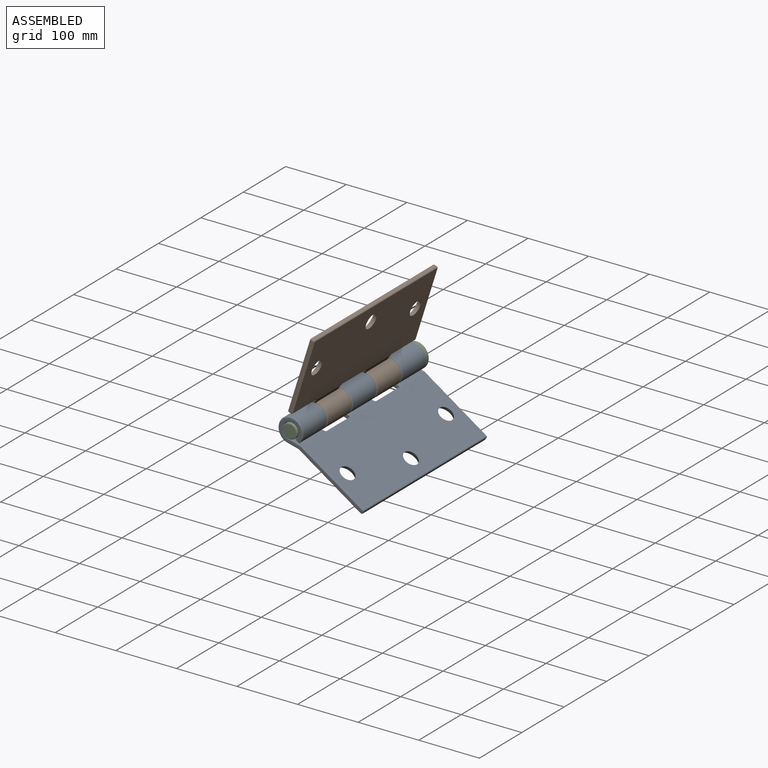
[diagram: assembled view]
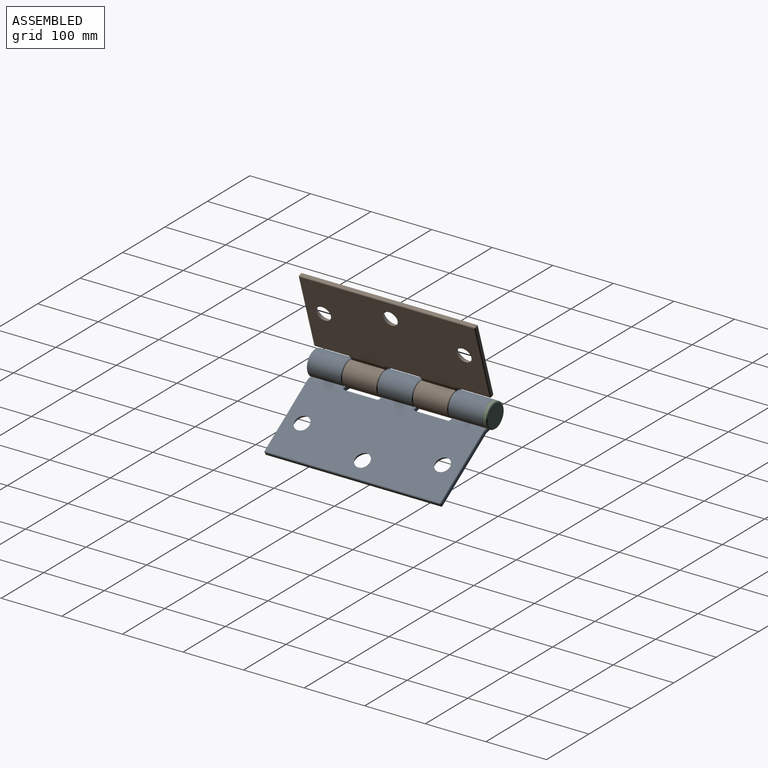
[diagram: assembled view, second angle]
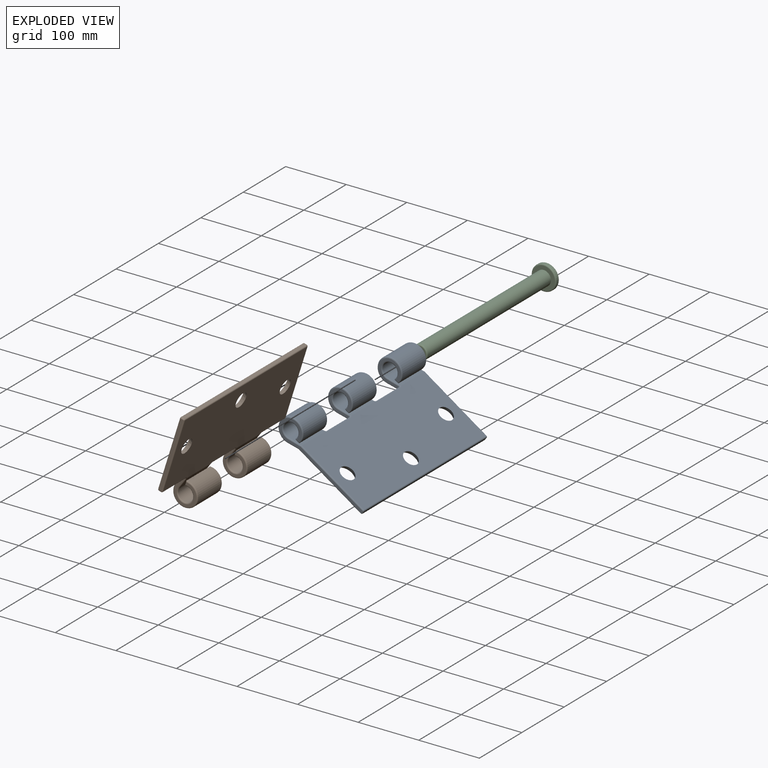
[diagram: exploded view]
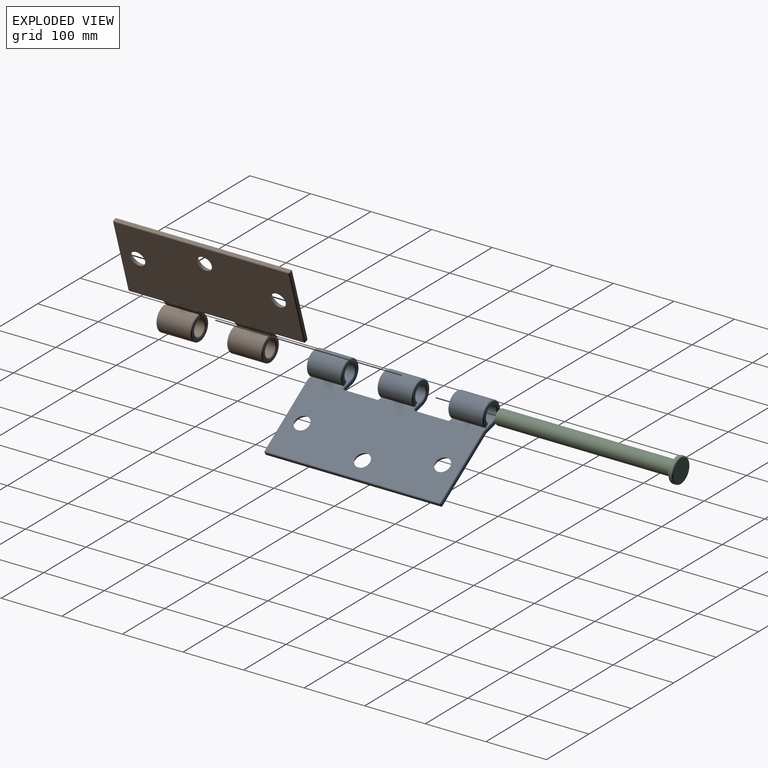
[diagram: exploded view, second angle]
ASSEMBLY  parts=3 mates=2
PART A: 95 faces, bbox 171.7x292x44.4 mm
  f0: cylinder r=12.5mm len=54.4mm, axis (0,1,0), area 3703.3mm2, adj f2,f8,f36,f85
  f1: cylinder r=12.5mm len=54.4mm, axis (0,1,0), area 3703.3mm2, adj f3,f9,f45,f56
  f2: plane 55.3x20.54mm, normal (-0.32,0,0.95), area 1179mm2, adj f0,f12,f33,f34,f35,f80
  f3: plane 56.21x20.54mm, normal (-0.32,0,0.95), area 1179.8mm2, adj f1,f12,f39,f41,f43,f53,f54,f55
  f4: plane 54.63x17.59mm, normal (0.34,0,-0.94), area 1016.4mm2, adj f6,f14,f42,f44,f93
  f5: plane 54.85x17.59mm, normal (0.34,0,-0.94), area 1016.5mm2, adj f7,f14,f51,f52,f62,f64
  f6: cylinder r=20.5mm len=54.4mm, axis (0,1,0), area 5913.6mm2, adj f4,f8,f40,f91
  f7: cylinder r=20.5mm len=54.4mm, axis (0,1,0), area 5913.6mm2, adj f5,f9,f49,f60
  f8: plane 54.4x8.42mm, normal (0,0,-1), area 458.3mm2, adj f0,f6,f38,f88
  f9: plane 54.4x8.42mm, normal (0,0,-1), area 458.3mm2, adj f1,f7,f47,f58
  f10: cylinder r=12.5mm len=54.4mm, axis (0,1,0), area 3703.3mm2, adj f11,f17,f65,f73
  f11: plane 55.3x20.54mm, normal (-0.32,0,0.95), area 1179mm2, adj f10,f12,f59,f61,f63,f74
  f12: plane 288x123mm, normal (0,0,1), area 33829.6mm2, adj f2,f3,f11,f20,f21,f22,f35,f37
  f13: plane 288x4mm, normal (1,0,0), area 1152mm2, adj f82,f83,f89,f90
  f14: plane 288x123.06mm, normal (0,0,-1), area 32774mm2, adj f4,f5,f15,f20,f21,f22,f44,f46
  f15: plane 54.63x17.59mm, normal (0.34,0,-0.94), area 1016.4mm2, adj f14,f16,f71,f72,f79
  f16: cylinder r=20.5mm len=54.4mm, axis (0,1,0), area 5913.6mm2, adj f15,f17,f69,f77
  f17: plane 54.4x8.42mm, normal (0,0,-1), area 458.3mm2, adj f10,f16,f67,f75
  f18: plane 166x37mm, normal (0,-1,0), area 913.5mm2, adj f80,f81,f85,f88,f89,f91,f93,f94
  f19: plane 166x37mm, normal (0,1,0), area 913.5mm2, adj f73,f74,f75,f76,f77,f79,f83,f84
  f20: cone r=12mm half-angle=26.6deg, axis (0,0,-1), area 786.8mm2, adj f12,f14
  f21: cone r=16mm half-angle=26.6deg, axis (0,0,-1), area 786.8mm2, adj f12,f14
  f22: cone r=16mm half-angle=26.6deg, axis (0,0,-1), area 786.8mm2, adj f12,f14
  f23: plane 54.4x4mm, normal (-1,0,0), area 217.6mm2, adj f29,f30,f57,f68
  f24: plane 41x37mm, normal (0,1,0), area 413.9mm2, adj f29,f54,f56,f58,f60,f62
  f25: plane 41x37mm, normal (0,-1,0), area 413.9mm2, adj f30,f63,f65,f67,f69,f71
  f26: plane 54.4x4mm, normal (-1,0,0), area 217.6mm2, adj f31,f32,f37,f48
  f27: plane 41x37mm, normal (0,1,0), area 413.9mm2, adj f31,f34,f36,f38,f40,f42
  f28: plane 41x37mm, normal (0,-1,0), area 413.9mm2, adj f32,f43,f45,f47,f49,f51
  f29: cylinder r=2mm len=4.59mm, axis (0,0,1), area 12.3mm2, adj f23,f24,f53,f55,f64,f66
  f30: cylinder r=2mm len=4.59mm, axis (0,0,-1), area 12.3mm2, adj f23,f25,f59,f61,f70,f72
  f31: cylinder r=2mm len=4.59mm, axis (0,0,1), area 12.3mm2, adj f26,f27,f33,f35,f44,f46
  f32: cylinder r=2mm len=4.59mm, axis (0,0,-1), area 12.3mm2, adj f26,f28,f39,f41,f50,f52
  f33: bspline ~2.75x2.54mm, area 6mm2, adj f2,f31,f34,f35
  f34: cylinder r=2mm len=18.54mm, axis (-0.95,0,-0.32), area 59.3mm2, adj f2,f27,f33,f36
  f35: torus R=4mm, axis (0,0,-1), area 8.7mm2, adj f2,f12,f31,f33,f37
  f36: torus R=14.5mm, axis (0,1,0), area 222mm2, adj f0,f27,f34,f38
  f37: cylinder r=2mm len=54.4mm, axis (0,-1,0), area 170.9mm2, adj f12,f26,f35,f39
  f38: cylinder r=2mm len=8.42mm, axis (1,0,0), area 19.6mm2, adj f8,f27,f36,f40
  f39: torus R=4mm, axis (0,0,-1), area 8.7mm2, adj f3,f12,f32,f37,f41
  f40: torus R=18.5mm, axis (0,1,0), area 326.9mm2, adj f6,f27,f38,f42
  f41: bspline ~3.65x3.11mm, area 6mm2, adj f3,f32,f39,f43
  f42: cylinder r=2mm len=16.94mm, axis (0.94,0,0.34), area 54.3mm2, adj f4,f27,f40,f44
  f43: cylinder r=2mm len=18.54mm, axis (0.95,0,0.32), area 59.3mm2, adj f3,f28,f41,f45
  f44: bspline ~2.47x2.33mm, area 3.5mm2, adj f4,f14,f31,f42,f46
  f45: torus R=14.5mm, axis (0,1,0), area 222mm2, adj f1,f28,f43,f47
  f46: torus R=4mm, axis (0,0,1), area 9.2mm2, adj f14,f31,f44,f48
  f47: cylinder r=2mm len=8.42mm, axis (-1,0,0), area 19.6mm2, adj f9,f28,f45,f49
  f48: cylinder r=2mm len=54.4mm, axis (0,1,0), area 170.9mm2, adj f14,f26,f46,f50
  f49: torus R=18.5mm, axis (0,1,0), area 326.9mm2, adj f7,f28,f47,f51
  f50: torus R=4mm, axis (0,0,1), area 9.2mm2, adj f14,f32,f48,f52
  f51: cylinder r=2mm len=16.94mm, axis (-0.94,0,-0.34), area 54.3mm2, adj f5,f28,f49,f52
  f52: bspline ~2.47x2.33mm, area 3.5mm2, adj f5,f14,f32,f50,f51
  f53: bspline ~2.75x2.54mm, area 6mm2, adj f3,f29,f54,f55
  f54: cylinder r=2mm len=18.54mm, axis (-0.95,0,-0.32), area 59.3mm2, adj f3,f24,f53,f56
  f55: torus R=4mm, axis (0,0,-1), area 8.7mm2, adj f3,f12,f29,f53,f57
  f56: torus R=14.5mm, axis (0,1,0), area 222mm2, adj f1,f24,f54,f58
  f57: cylinder r=2mm len=54.4mm, axis (0,-1,0), area 170.9mm2, adj f12,f23,f55,f59
  f58: cylinder r=2mm len=8.42mm, axis (1,0,0), area 19.6mm2, adj f9,f24,f56,f60
  f59: torus R=4mm, axis (0,0,-1), area 8.7mm2, adj f11,f12,f30,f57,f61
  f60: torus R=18.5mm, axis (0,1,0), area 326.9mm2, adj f7,f24,f58,f62
  f61: bspline ~3.65x3.11mm, area 6mm2, adj f11,f30,f59,f63
  f62: cylinder r=2mm len=16.94mm, axis (0.94,0,0.34), area 54.3mm2, adj f5,f24,f60,f64
  f63: cylinder r=2mm len=18.54mm, axis (0.95,0,0.32), area 59.3mm2, adj f11,f25,f61,f65
  f64: bspline ~2.47x2.33mm, area 3.5mm2, adj f5,f14,f29,f62,f66
  f65: torus R=14.5mm, axis (0,1,0), area 222mm2, adj f10,f25,f63,f67
  f66: torus R=4mm, axis (0,0,1), area 9.2mm2, adj f14,f29,f64,f68
  f67: cylinder r=2mm len=8.42mm, axis (-1,0,0), area 19.6mm2, adj f17,f25,f65,f69
  f68: cylinder r=2mm len=54.4mm, axis (0,1,0), area 170.9mm2, adj f14,f23,f66,f70
  f69: torus R=18.5mm, axis (0,1,0), area 326.9mm2, adj f16,f25,f67,f71
  f70: torus R=4mm, axis (0,0,1), area 9.2mm2, adj f14,f30,f68,f72
  f71: cylinder r=2mm len=16.94mm, axis (-0.94,0,-0.34), area 54.3mm2, adj f15,f25,f69,f72
  f72: bspline ~2.47x2.33mm, area 3.5mm2, adj f14,f15,f30,f70,f71
  f73: torus R=14.5mm, axis (0,-1,0), area 222mm2, adj f10,f19,f74,f75
  f74: cylinder r=2mm len=21.18mm, axis (0.95,0,0.32), area 67.5mm2, adj f11,f19,f73,f76
  f75: cylinder r=2mm len=8.42mm, axis (-1,0,0), area 19.6mm2, adj f17,f19,f73,f77
  f76: cylinder r=2mm len=123mm, axis (1,0,0), area 385.9mm2, adj f12,f19,f74,f78
  f77: torus R=18.5mm, axis (0,-1,0), area 326.9mm2, adj f16,f19,f75,f79
  f78: sphere r=2mm, area 6.3mm2, adj f76,f82,f83
  f79: cylinder r=2mm len=18.59mm, axis (-0.94,0,-0.34), area 59.2mm2, adj f15,f19,f77,f84
  f80: cylinder r=2mm len=21.18mm, axis (-0.95,0,-0.32), area 67.5mm2, adj f2,f18,f81,f85
  f81: cylinder r=2mm len=123mm, axis (-1,0,0), area 385.9mm2, adj f12,f18,f80,f86
  f82: cylinder r=2mm len=288mm, axis (0,1,0), area 904.8mm2, adj f12,f13,f78,f86
  f83: cylinder r=2mm len=4mm, axis (0,0,-1), area 12.6mm2, adj f13,f19,f78,f87
  f84: cylinder r=2mm len=123.35mm, axis (-1,0,0), area 387mm2, adj f14,f19,f79,f87
  f85: torus R=14.5mm, axis (0,-1,0), area 222mm2, adj f0,f18,f80,f88
  f86: sphere r=2mm, area 6.3mm2, adj f81,f82,f89
  f87: sphere r=2mm, area 4mm2, adj f83,f84,f90
  f88: cylinder r=2mm len=8.42mm, axis (1,0,0), area 19.6mm2, adj f8,f18,f85,f91
  f89: cylinder r=2mm len=4mm, axis (0,0,1), area 12.6mm2, adj f13,f18,f86,f92
  f90: cylinder r=2mm len=288mm, axis (0,1,0), area 904.8mm2, adj f13,f14,f87,f92
  f91: torus R=18.5mm, axis (0,-1,0), area 326.9mm2, adj f6,f18,f88,f93
  f92: sphere r=2mm, area 6.3mm2, adj f89,f90,f94
  f93: cylinder r=2mm len=18.59mm, axis (0.94,0,0.34), area 59.2mm2, adj f4,f18,f91,f94
  f94: cylinder r=2mm len=123.35mm, axis (1,0,0), area 387mm2, adj f14,f18,f92,f93
PART B: 89 faces, bbox 171.7x292x44.4 mm
  f0: cylinder r=12.5mm len=54.4mm, axis (0,1,0), area 3703.3mm2, adj f2,f8,f61,f72
  f1: cylinder r=12.5mm len=54.4mm, axis (0,1,0), area 3703.3mm2, adj f3,f9,f29,f81
  f2: plane 56.21x20.54mm, normal (0.32,0,0.95), area 1179.8mm2, adj f0,f12,f50,f55,f58,f69,f70,f71
  f3: plane 56.21x20.54mm, normal (0.32,0,0.95), area 1179.8mm2, adj f1,f12,f30,f32,f34,f75,f77,f79
  f4: plane 54.85x17.59mm, normal (-0.34,0,-0.94), area 1016.5mm2, adj f6,f14,f67,f68,f78,f80
  f5: plane 54.85x17.59mm, normal (-0.34,0,-0.94), area 1016.5mm2, adj f7,f14,f35,f37,f87,f88
  f6: cylinder r=20.5mm len=54.4mm, axis (0,1,0), area 5913.6mm2, adj f4,f8,f65,f76
  f7: cylinder r=20.5mm len=54.4mm, axis (0,1,0), area 5913.6mm2, adj f5,f9,f33,f85
  f8: plane 54.4x8.42mm, normal (0,0,-1), area 458.3mm2, adj f0,f6,f63,f74
  f9: plane 54.4x8.42mm, normal (0,0,-1), area 458.3mm2, adj f1,f7,f31,f83
  f10: plane 121x4mm, normal (0,-1,0), area 484mm2, adj f40,f41,f46,f47
  f11: plane 121x4mm, normal (0,1,0), area 484mm2, adj f52,f53,f59,f60
  f12: plane 288x123mm, normal (0,0,1), area 33720.8mm2, adj f2,f3,f15,f16,f17,f34,f36,f40
  f13: plane 288x4mm, normal (-1,0,0), area 1152mm2, adj f45,f46,f53,f54
  f14: plane 288x123.06mm, normal (0,0,-1), area 32665.2mm2, adj f4,f5,f15,f16,f17,f37,f39,f42
  f15: cone r=12mm half-angle=26.6deg, axis (0,0,-1), area 786.8mm2, adj f12,f14
  f16: cone r=16mm half-angle=26.6deg, axis (0,0,-1), area 786.8mm2, adj f12,f14
  f17: cone r=16mm half-angle=26.6deg, axis (0,0,-1), area 786.8mm2, adj f12,f14
  f18: plane 54.4x4mm, normal (1,0,0), area 217.6mm2, adj f25,f36,f41,f42
  f19: plane 41x37mm, normal (0,-1,0), area 413.9mm2, adj f25,f29,f30,f31,f33,f35
  f20: plane 54.4x4mm, normal (1,0,0), area 217.6mm2, adj f26,f27,f73,f84
  f21: plane 41x37mm, normal (0,-1,0), area 413.9mm2, adj f26,f70,f72,f74,f76,f78
  f22: plane 41x37mm, normal (0,1,0), area 413.9mm2, adj f27,f79,f81,f83,f85,f87
  f23: plane 54.4x4mm, normal (1,0,0), area 217.6mm2, adj f28,f51,f59,f64
  f24: plane 41x37mm, normal (0,1,0), area 413.9mm2, adj f28,f58,f61,f63,f65,f67
  f25: cylinder r=2mm len=4.59mm, axis (0,0,-1), area 12.3mm2, adj f18,f19,f32,f34,f37,f39
  f26: cylinder r=2mm len=4.59mm, axis (0,0,-1), area 12.3mm2, adj f20,f21,f69,f71,f80,f82
  f27: cylinder r=2mm len=4.59mm, axis (0,0,1), area 12.3mm2, adj f20,f22,f75,f77,f86,f88
  f28: cylinder r=2mm len=4.59mm, axis (0,0,1), area 12.3mm2, adj f23,f24,f50,f55,f66,f68
  f29: torus R=14.5mm, axis (0,-1,0), area 222mm2, adj f1,f19,f30,f31
  f30: cylinder r=2mm len=18.54mm, axis (0.95,0,-0.32), area 59.3mm2, adj f3,f19,f29,f32
  f31: cylinder r=2mm len=8.42mm, axis (-1,0,0), area 19.6mm2, adj f9,f19,f29,f33
  f32: bspline ~3.65x3.11mm, area 6mm2, adj f3,f25,f30,f34
  f33: torus R=18.5mm, axis (0,-1,0), area 326.9mm2, adj f7,f19,f31,f35
  f34: torus R=4mm, axis (0,0,-1), area 8.7mm2, adj f3,f12,f25,f32,f36
  f35: cylinder r=2mm len=16.94mm, axis (-0.94,0,0.34), area 54.3mm2, adj f5,f19,f33,f37
  f36: cylinder r=2mm len=54.4mm, axis (0,-1,0), area 170.9mm2, adj f12,f18,f34,f38
  f37: bspline ~2.47x2.33mm, area 3.5mm2, adj f5,f14,f25,f35,f39
  f38: sphere r=2mm, area 6.3mm2, adj f36,f40,f41
  f39: torus R=4mm, axis (0,0,1), area 9.2mm2, adj f14,f25,f37,f42
  f40: cylinder r=2mm len=121mm, axis (1,0,0), area 380.1mm2, adj f10,f12,f38,f43
  f41: cylinder r=2mm len=4mm, axis (0,0,1), area 12.6mm2, adj f10,f18,f38,f44
  f42: cylinder r=2mm len=54.4mm, axis (0,-1,0), area 170.9mm2, adj f14,f18,f39,f44
  f43: sphere r=2mm, area 6.3mm2, adj f40,f45,f46
  f44: sphere r=2mm, area 6.3mm2, adj f41,f42,f47
  f45: cylinder r=2mm len=288mm, axis (0,1,0), area 904.8mm2, adj f12,f13,f43,f48
  f46: cylinder r=2mm len=4mm, axis (0,0,1), area 12.6mm2, adj f10,f13,f43,f49
  f47: cylinder r=2mm len=121mm, axis (-1,0,0), area 380.1mm2, adj f10,f14,f44,f49
  f48: sphere r=2mm, area 6.3mm2, adj f45,f52,f53
  f49: sphere r=2mm, area 6.3mm2, adj f46,f47,f54
  f50: torus R=4mm, axis (0,0,-1), area 8.7mm2, adj f2,f12,f28,f51,f55
  f51: cylinder r=2mm len=54.4mm, axis (0,1,0), area 170.9mm2, adj f12,f23,f50,f56
  f52: cylinder r=2mm len=121mm, axis (-1,0,0), area 380.1mm2, adj f11,f12,f48,f56
  f53: cylinder r=2mm len=4mm, axis (0,0,-1), area 12.6mm2, adj f11,f13,f48,f57
  f54: cylinder r=2mm len=288mm, axis (0,1,0), area 904.8mm2, adj f13,f14,f49,f57
  f55: bspline ~3.65x3.11mm, area 6mm2, adj f2,f28,f50,f58
  f56: sphere r=2mm, area 6.3mm2, adj f51,f52,f59
  f57: sphere r=2mm, area 6.3mm2, adj f53,f54,f60
  f58: cylinder r=2mm len=18.54mm, axis (-0.95,0,0.32), area 59.3mm2, adj f2,f24,f55,f61
  f59: cylinder r=2mm len=4mm, axis (0,0,-1), area 12.6mm2, adj f11,f23,f56,f62
  f60: cylinder r=2mm len=121mm, axis (1,0,0), area 380.1mm2, adj f11,f14,f57,f62
  f61: torus R=14.5mm, axis (0,-1,0), area 222mm2, adj f0,f24,f58,f63
  f62: sphere r=2mm, area 4mm2, adj f59,f60,f64
  f63: cylinder r=2mm len=8.42mm, axis (1,0,0), area 19.6mm2, adj f8,f24,f61,f65
  f64: cylinder r=2mm len=54.4mm, axis (0,-1,0), area 170.9mm2, adj f14,f23,f62,f66
  f65: torus R=18.5mm, axis (0,-1,0), area 326.9mm2, adj f6,f24,f63,f67
  f66: torus R=4mm, axis (0,0,1), area 9.2mm2, adj f14,f28,f64,f68
  f67: cylinder r=2mm len=16.94mm, axis (0.94,0,-0.34), area 54.3mm2, adj f4,f24,f65,f68
  f68: bspline ~2.47x2.33mm, area 3.5mm2, adj f4,f14,f28,f66,f67
  f69: bspline ~3.65x3.11mm, area 6mm2, adj f2,f26,f70,f71
  f70: cylinder r=2mm len=18.54mm, axis (0.95,0,-0.32), area 59.3mm2, adj f2,f21,f69,f72
  f71: torus R=4mm, axis (0,0,-1), area 8.7mm2, adj f2,f12,f26,f69,f73
  f72: torus R=14.5mm, axis (0,-1,0), area 222mm2, adj f0,f21,f70,f74
  f73: cylinder r=2mm len=54.4mm, axis (0,1,0), area 170.9mm2, adj f12,f20,f71,f75
  f74: cylinder r=2mm len=8.42mm, axis (-1,0,0), area 19.6mm2, adj f8,f21,f72,f76
  f75: torus R=4mm, axis (0,0,-1), area 8.7mm2, adj f3,f12,f27,f73,f77
  f76: torus R=18.5mm, axis (0,-1,0), area 326.9mm2, adj f6,f21,f74,f78
  f77: bspline ~2.75x2.54mm, area 6mm2, adj f3,f27,f75,f79
  f78: cylinder r=2mm len=16.94mm, axis (-0.94,0,0.34), area 54.3mm2, adj f4,f21,f76,f80
  f79: cylinder r=2mm len=18.54mm, axis (-0.95,0,0.32), area 59.3mm2, adj f3,f22,f77,f81
  f80: bspline ~2.47x2.33mm, area 3.5mm2, adj f4,f14,f26,f78,f82
  f81: torus R=14.5mm, axis (0,-1,0), area 222mm2, adj f1,f22,f79,f83
  f82: torus R=4mm, axis (0,0,1), area 9.2mm2, adj f14,f26,f80,f84
  f83: cylinder r=2mm len=8.42mm, axis (1,0,0), area 19.6mm2, adj f9,f22,f81,f85
  f84: cylinder r=2mm len=54.4mm, axis (0,-1,0), area 170.9mm2, adj f14,f20,f82,f86
  f85: torus R=18.5mm, axis (0,-1,0), area 326.9mm2, adj f7,f22,f83,f87
  f86: torus R=4mm, axis (0,0,1), area 9.2mm2, adj f14,f27,f84,f88
  f87: cylinder r=2mm len=16.94mm, axis (0.94,0,-0.34), area 54.3mm2, adj f5,f22,f85,f88
  f88: bspline ~2.47x2.33mm, area 3.5mm2, adj f5,f14,f27,f86,f87
PART C: 8 faces, bbox 44.4x300x44.4 mm
  f0: cylinder r=12.25mm len=290mm, axis (0,1,0), area 22321mm2, adj f4,f7
  f1: plane 20.5x20.5mm, normal (0,-1,0), area 330.1mm2, adj f7
  f2: cylinder r=20.5mm len=41mm, axis (0,-1,0), area 515.2mm2, adj f5,f6
  f3: plane 37x37mm, normal (0,1,0), area 1075.2mm2, adj f6
  f4: plane 37x37mm, normal (0,-1,0), area 603.8mm2, adj f0,f5
  f5: torus R=18.5mm, axis (0,1,0), area 390.3mm2, adj f2,f4
  f6: torus R=18.5mm, axis (0,1,0), area 390.3mm2, adj f2,f3
  f7: torus R=10.25mm, axis (0,1,0), area 227.5mm2, adj f0,f1
PLACE A rot(axis=(0,1,0),33.8deg) t=(-10.63,128.55,-83.4)mm
PLACE B rot(axis=(0,1,0),107.4deg) t=(15.08,128.55,-68)mm
PLACE C t=(-11.98,126.55,-97.87)mm fixed
MATE revolute C.f0 <-> A.f56  axis (0,-1,0) through (12.52,126.55,-92.87)mm
MATE revolute B.f0 <-> A.f0  axis (0,-1,0) through (12.52,-105.05,-92.87)mm
